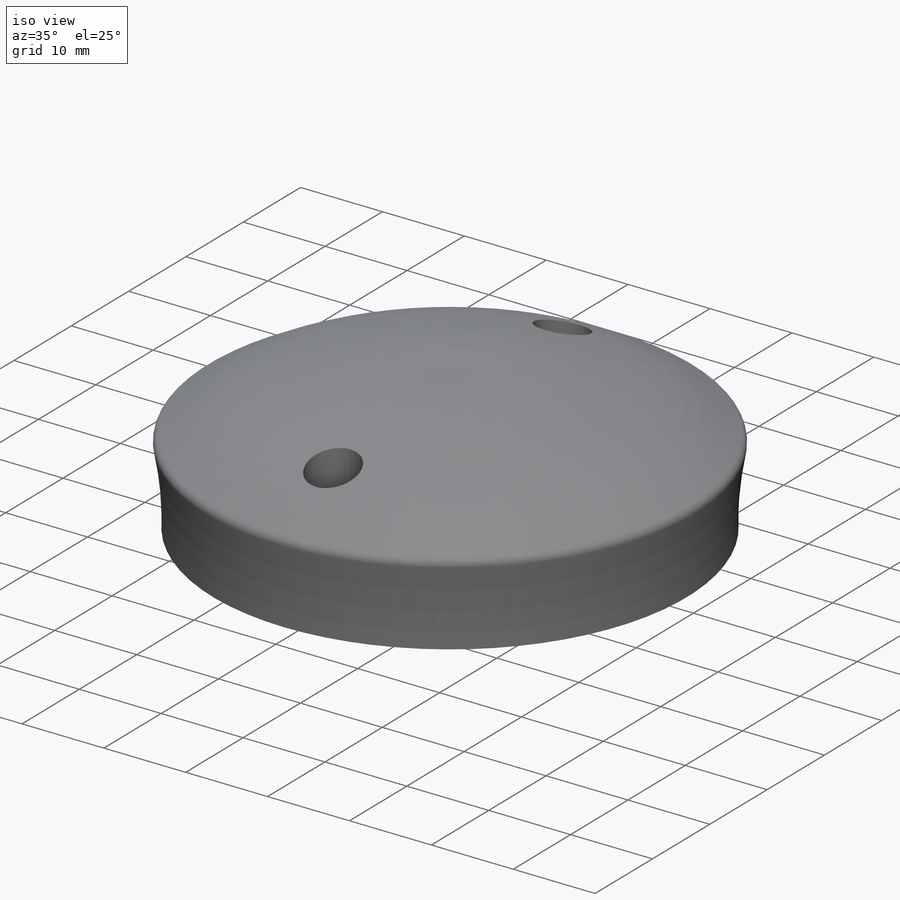
[diagram: iso view]
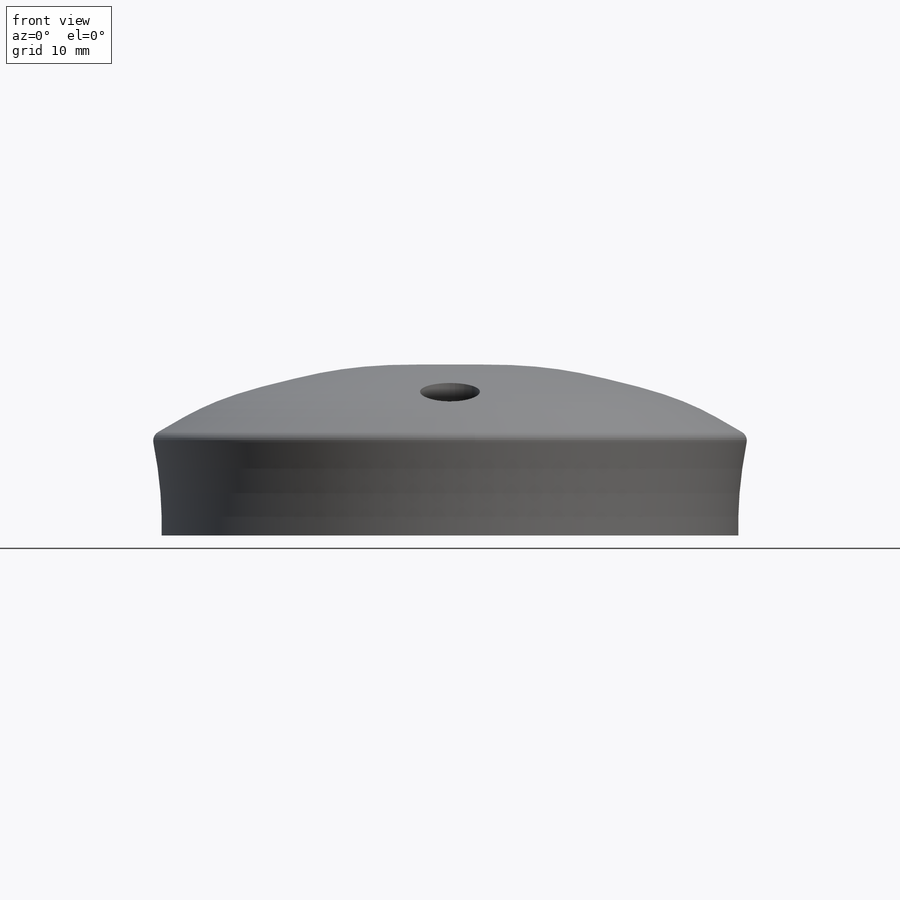
[diagram: front view]
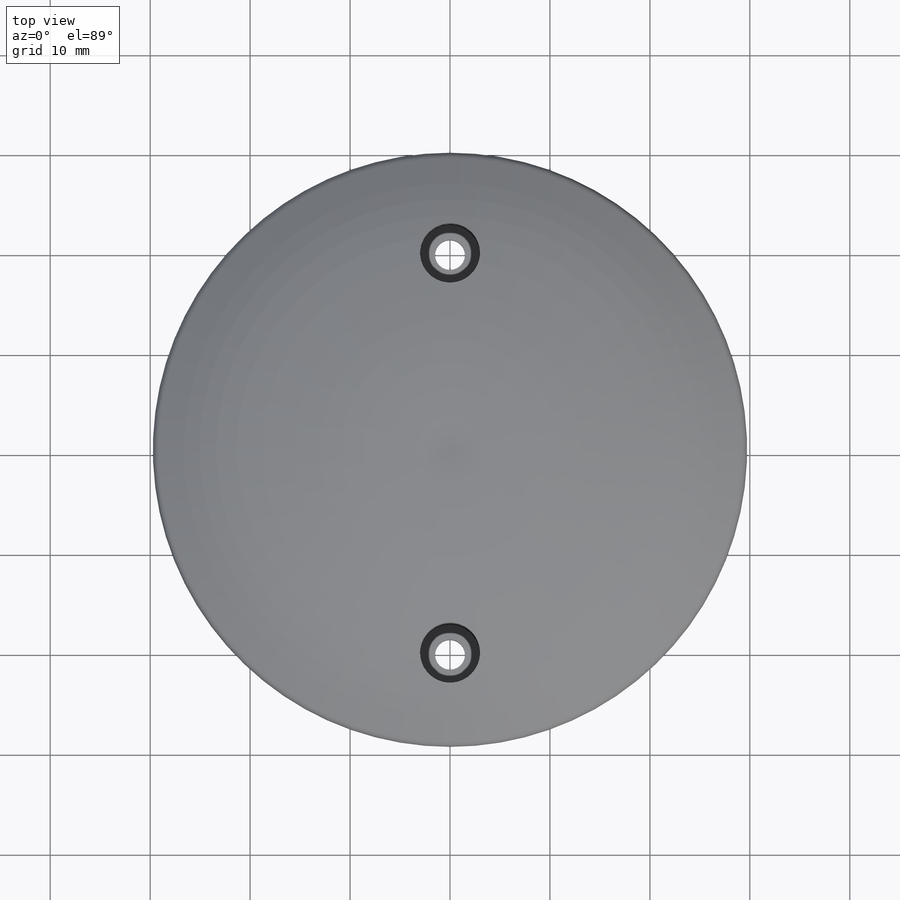
[diagram: top view]
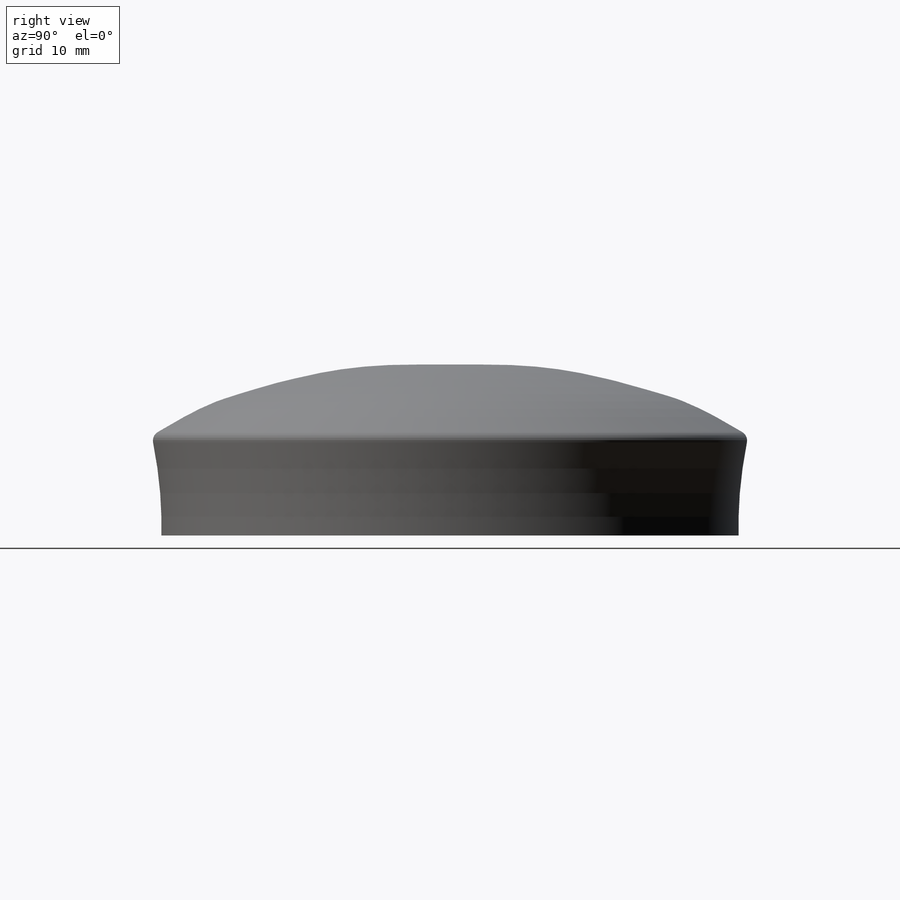
[diagram: right view]
SOLIDWORKS PART (.sldprt)
format: sldprt  version: not decoded by parser v0  size: 280,064 bytes
history: native  units: mm
features: sketch x4, plane x3, cut_extrude x3, material x1, revolve x1, fillet x1 (+9 scaffold rows collapsed)
feature tree (22):
  scaffold x9  (default folders/planes/origin — collapsed)
  material  "ABS"
  plane  "Ebene vorne"
  plane  "Ebene oben"
  plane  "Ebene rechts"
  sketch  "Skizze1"  dims[D1=30.0mm D2=7.0mm D3=22.0mm D4=8.0mm]
  revolve  "Rotation1"  Angle=360deg
  sketch  "Skizze2"  dims[D4=3.0mm D5=3.0mm D1=10.3mm D2=25.0mm D3=20.0mm]
  cut_extrude  "Schnitt-Linear austragen1"  Depth=6.5mm
  cut_extrude  "Schnitt-Linear austragen2"  [1 undecoded]
  sketch  "Skizze2<3>"  dims[D1=12.0mm]
  fillet  "Verrundung2"  Radius=1mm
  sketch  "Skizze3"  dims[D1=6.0mm D2=6.0mm]
  cut_extrude  "Schnitt-Linear austragen3"  Depth=20mm
decode coverage: 8 of 9 modeling features carry decoded parameters
note: 1 parameter value undecoded
note: suppression state not decoded; provenance and decode notes live in map.json
